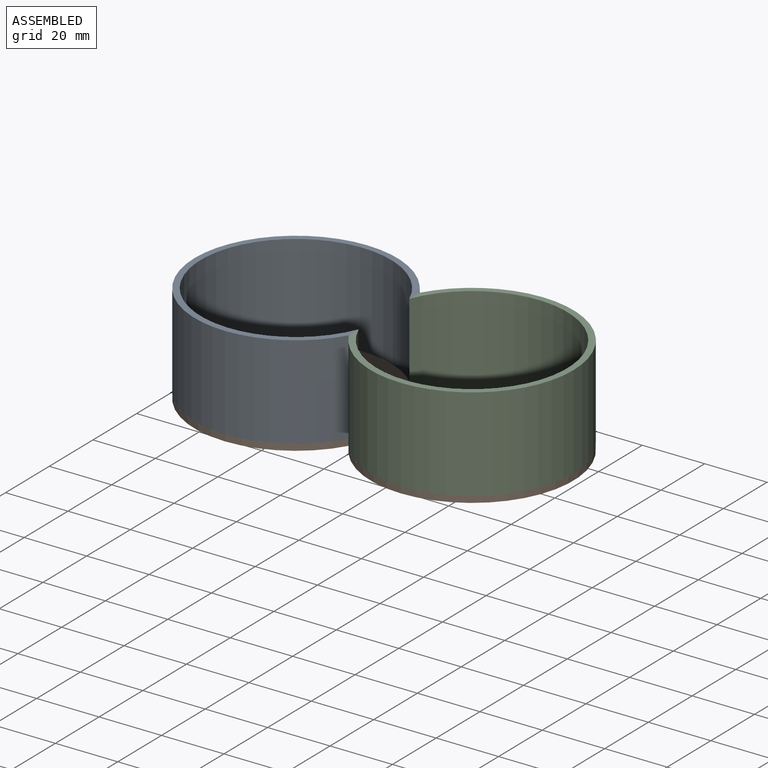
[diagram: assembled view]
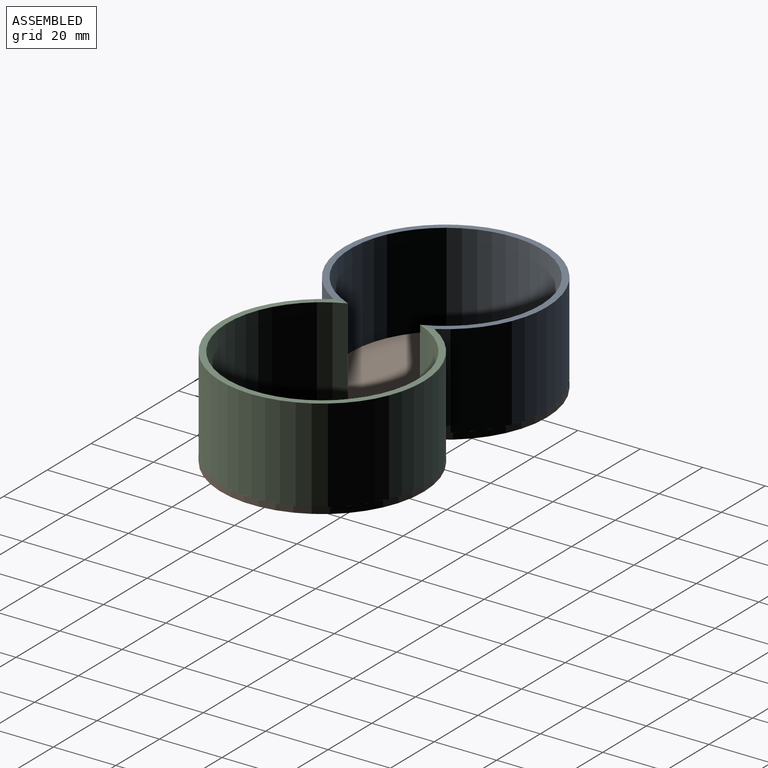
[diagram: assembled view, second angle]
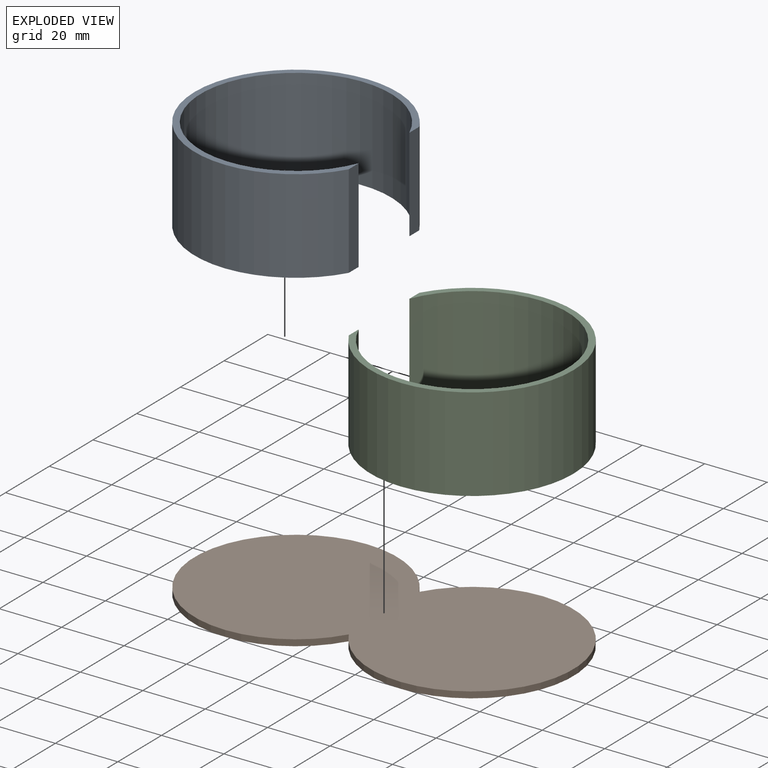
[diagram: exploded view]
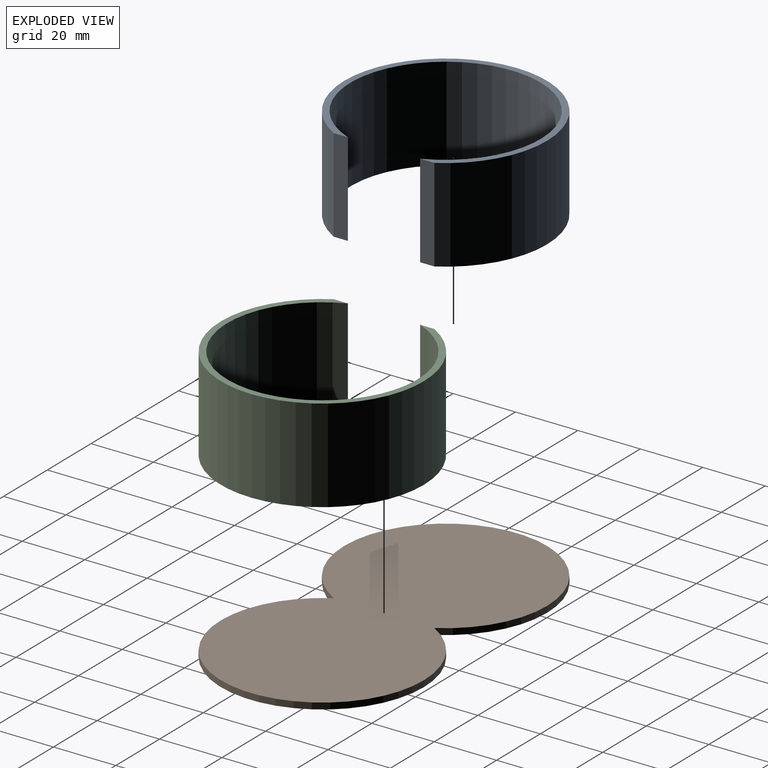
[diagram: exploded view, second angle]
ASSEMBLY  parts=3 mates=2
PART A: 6 faces, bbox 60.7x65x30 mm
  f0: plane 65x60.71mm, normal (0,0,1), area 338mm2, adj f2,f3,f4,f5
  f1: plane 65x60.71mm, normal (0,0,-1), area 338mm2, adj f2,f3,f4,f5
  f2: cylinder r=30.5mm len=61mm, axis (0,0,-1), area 5036.2mm2, adj f0,f1,f4,f5
  f3: cylinder r=32.5mm len=65mm, axis (0,0,-1), area 5113.4mm2, adj f0,f1,f4,f5
  f4: plane 30x4.55mm, normal (1,0,0), area 136.4mm2, adj f0,f1,f2,f3
  f5: plane 30x4.55mm, normal (1,0,0), area 136.4mm2, adj f0,f1,f2,f3
PART B: 4 faces, bbox 121.4x65x2 mm
  f0: cylinder r=32.5mm len=65mm, axis (0,0,-1), area 340.9mm2, adj f1,f2,f3
  f1: cylinder r=32.5mm len=65mm, axis (0,0,-1), area 340.9mm2, adj f0,f2,f3
  f2: plane 121.43x65mm, normal (0,0,1), area 6449.7mm2, adj f0,f1
  f3: plane 121.43x65mm, normal (0,0,-1), area 6449.7mm2, adj f0,f1
PART C: 6 faces, bbox 60.7x65x30 mm
  f0: cylinder r=30.5mm len=61mm, axis (0,0,-1), area 5036.2mm2, adj f2,f3,f4,f5
  f1: cylinder r=32.5mm len=65mm, axis (0,0,-1), area 5113.4mm2, adj f2,f3,f4,f5
  f2: plane 65x60.71mm, normal (0,0,1), area 338mm2, adj f0,f1,f4,f5
  f3: plane 65x60.71mm, normal (0,0,-1), area 338mm2, adj f0,f1,f4,f5
  f4: plane 30x4.55mm, normal (-1,0,0), area 136.4mm2, adj f0,f1,f2,f3
  f5: plane 30x4.55mm, normal (-1,0,0), area 136.4mm2, adj f0,f1,f2,f3
PLACE A at identity
PLACE B t=(-30.64,-151.53,-2)mm
PLACE C t=(-47.19,0.3,0)mm
MATE fastened B.f1 <-> A.f2  axis (0,0,1) through (-58.86,-151.53,0)mm
MATE fastened B.f0 <-> C.f0  axis (0,0,1) through (-2.43,-151.53,0)mm
